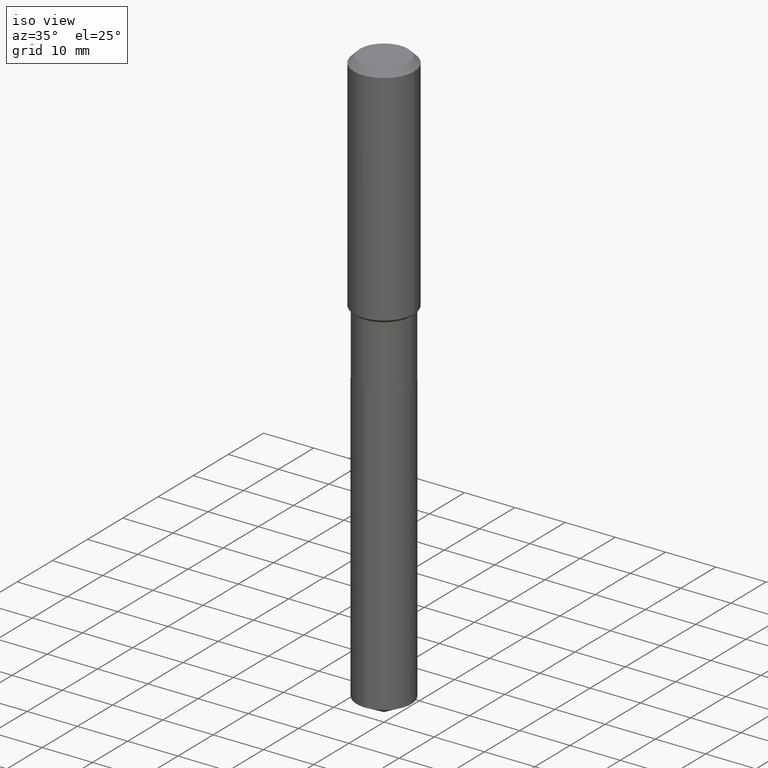
[diagram: clean part render]
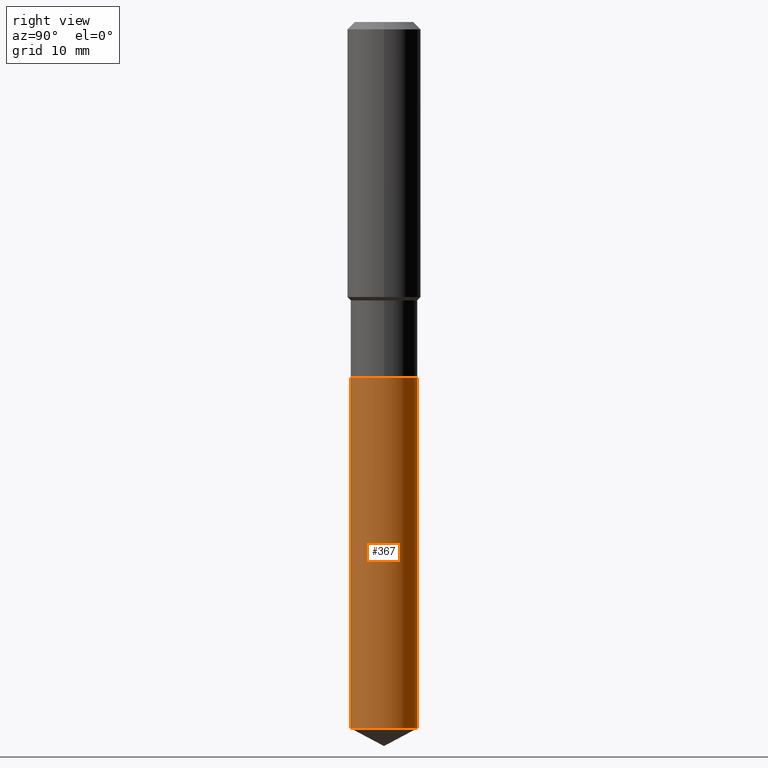
[diagram: tour spotlight — one face highlighted and labeled with its STEP entity id]
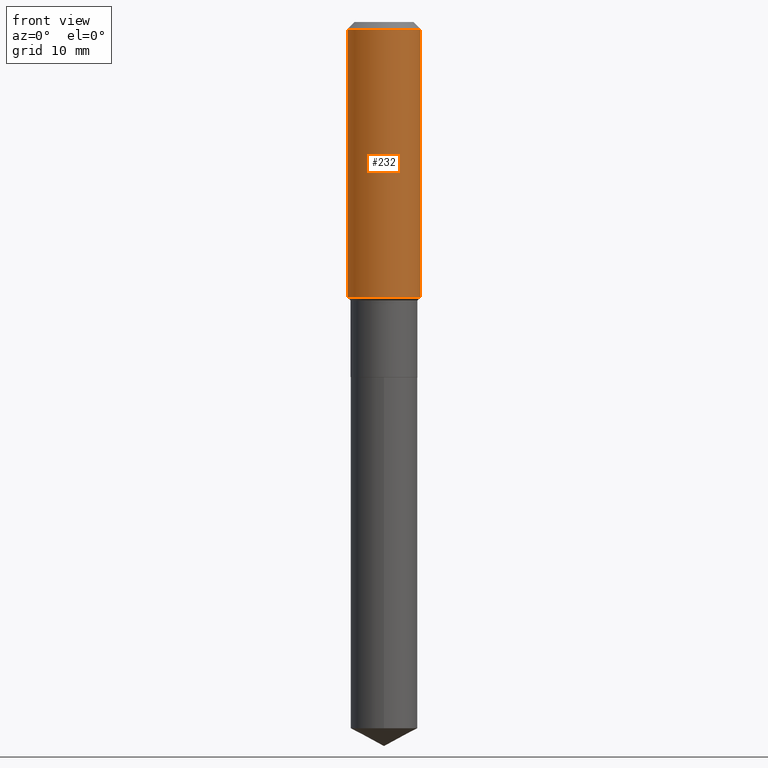
[diagram: tour spotlight — one face highlighted and labeled with its STEP entity id]
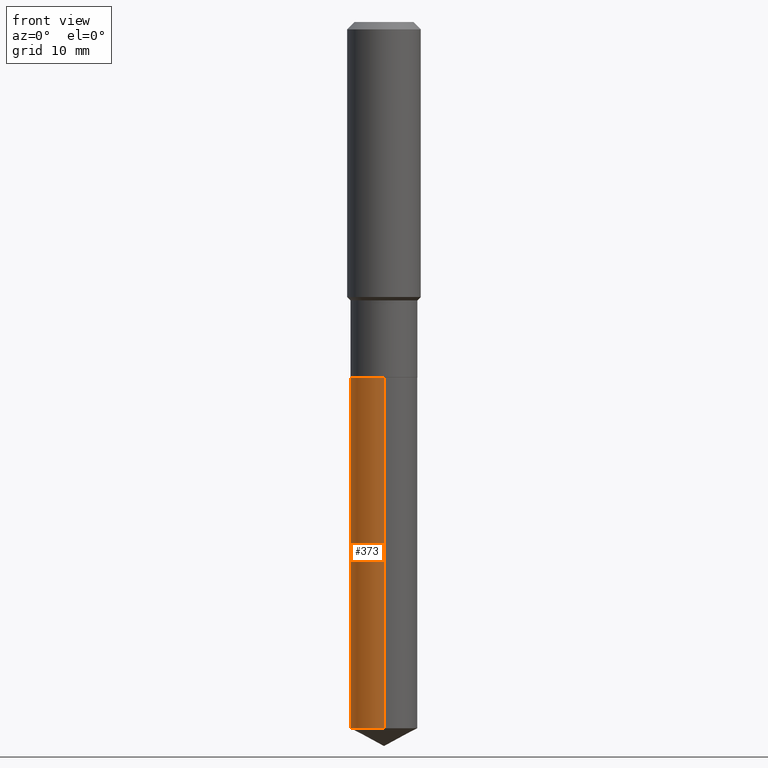
[diagram: tour spotlight — one face highlighted and labeled with its STEP entity id]
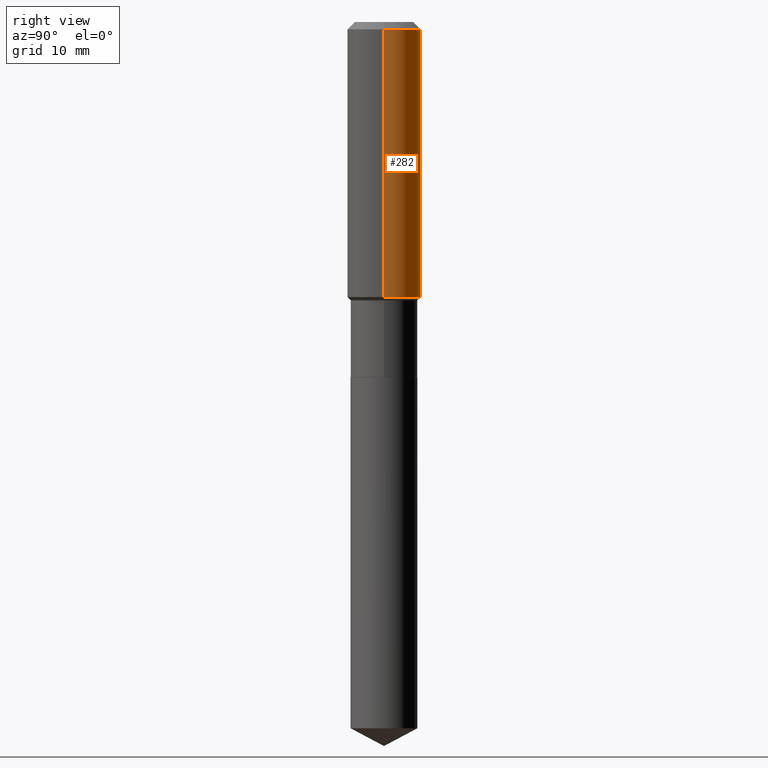
[diagram: tour spotlight — one face highlighted and labeled with its STEP entity id]
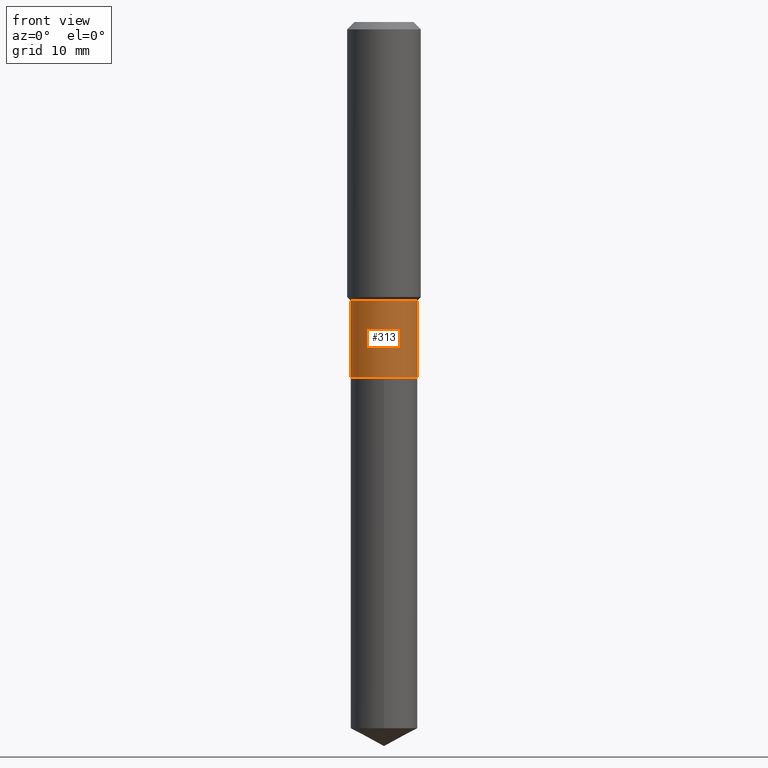
[diagram: tour spotlight — one face highlighted and labeled with its STEP entity id]
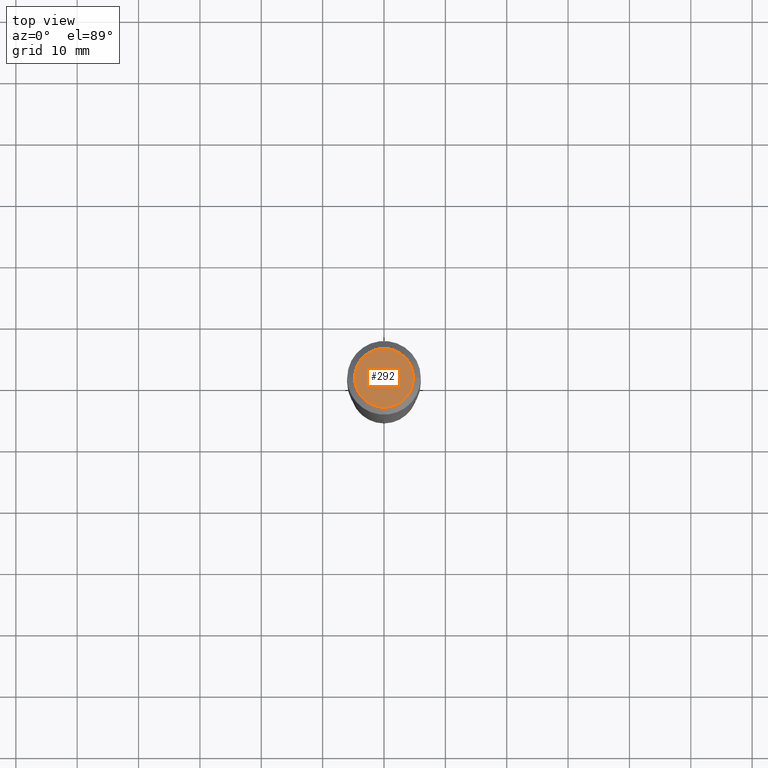
[diagram: tour spotlight — one face highlighted and labeled with its STEP entity id]
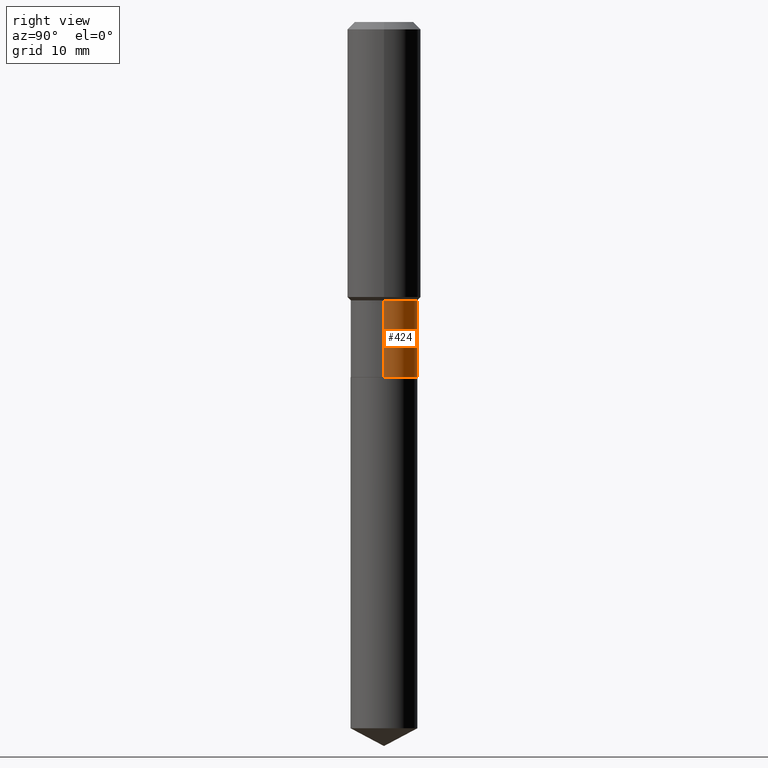
[diagram: tour spotlight — one face highlighted and labeled with its STEP entity id]
A machine part: a face-by-face anatomy tour. The part has 17 B-rep faces; the first image is the clean iso view, then the 7 largest visible faces are spotlighted one at a time (largest first), each with its STEP entity span.

Face 1 — right view, entity #367. In plain terms, the highlighted cylindrical surface (edge-blend (fillet) strip) has radius 5.4496 mm, axis along (-0, 0, 1).
Definition (entity closure, byte-faithful):
#10 = VERTEX_POINT ( 'NONE', #303 ) ;
#21 = AXIS2_PLACEMENT_3D ( 'NONE', #239, #396, #51 ) ;
#51 = DIRECTION ( 'NONE',  ( -6.982962677686266711E-15, -1.000000000000000000, 3.819876010716751118E-15 ) ) ;
#60 = VECTOR ( 'NONE', #197, 39.37007874015748143 ) ;
#72 = CARTESIAN_POINT ( 'NONE',  ( -1.498194642497477368E-15, -0.2145500000000157836, -4.531621741437029449 ) ) ;
#75 = VERTEX_POINT ( 'NONE', #187 ) ;
#82 = LINE ( 'NONE', #200, #330 ) ;
#83 = VERTEX_POINT ( 'NONE', #72 ) ;
#110 = VERTEX_POINT ( 'NONE', #357 ) ;
#115 = AXIS2_PLACEMENT_3D ( 'NONE', #316, #469, #121 ) ;
#121 = DIRECTION ( 'NONE',  ( -6.982962677686266711E-15, -1.000000000000000000, 2.546584007144500745E-15 ) ) ;
#127 = EDGE_CURVE ( 'NONE', #10, #75, #254, .T. ) ;
#159 = CARTESIAN_POINT ( 'NONE',  ( -1.498194642497532588E-15, -0.2145500000000079566, -2.279499999999998749 ) ) ;
#165 = DIRECTION ( 'NONE',  ( -2.445464104215688479E-29, 3.491488072331014766E-15, 1.000000000000000000 ) ) ;
#167 = AXIS2_PLACEMENT_3D ( 'NONE', #476, #165, #444 ) ;
#187 = CARTESIAN_POINT ( 'NONE',  ( 1.524469439573405915E-15, 0.2145499999999920249, -2.279500000000000526 ) ) ;
#197 = DIRECTION ( 'NONE',  ( -2.445464104215688759E-29, 3.491488072331014766E-15, 1.000000000000000000 ) ) ;
#199 = EDGE_LOOP ( 'NONE', ( #265, #432, #356, #219 ) ) ;
#200 = CARTESIAN_POINT ( 'NONE',  ( 1.524469439573350498E-15, 0.2145499999999920526, -2.279500000000000526 ) ) ;
#203 = DIRECTION ( 'NONE',  ( -2.445464104215688759E-29, 3.491488072331014766E-15, 1.000000000000000000 ) ) ;
#216 = CIRCLE ( 'NONE', #115, 0.2145499999999999907 ) ;
#219 = ORIENTED_EDGE ( 'NONE', *, *, #399, .F. ) ;
#221 = EDGE_CURVE ( 'NONE', #110, #75, #82, .T. ) ;
#239 = CARTESIAN_POINT ( 'NONE',  ( 5.574446143699018056E-29, -7.958831711892947948E-15, -2.279499999999999638 ) ) ;
#254 = CIRCLE ( 'NONE', #21, 0.2145499999999999907 ) ;
#265 = ORIENTED_EDGE ( 'NONE', *, *, #451, .T. ) ;
#284 = LINE ( 'NONE', #159, #60 ) ;
#287 = FACE_OUTER_BOUND ( 'NONE', #199, .T. ) ;
#303 = CARTESIAN_POINT ( 'NONE',  ( -1.498194642497532588E-15, -0.2145500000000079566, -2.279499999999998749 ) ) ;
#316 = CARTESIAN_POINT ( 'NONE',  ( 1.108192902070700221E-28, -1.582208790955769543E-14, -4.531621741437030337 ) ) ;
#330 = VECTOR ( 'NONE', #203, 39.37007874015748143 ) ;
#356 = ORIENTED_EDGE ( 'NONE', *, *, #127, .F. ) ;
#357 = CARTESIAN_POINT ( 'NONE',  ( 1.524469439573405126E-15, 0.2145499999999841700, -4.531621741437031226 ) ) ;
#367 = ADVANCED_FACE ( 'NONE', ( #287 ), #473, .T. ) ;
#396 = DIRECTION ( 'NONE',  ( -2.445464104215688479E-29, 3.491488072331014766E-15, 1.000000000000000000 ) ) ;
#399 = EDGE_CURVE ( 'NONE', #83, #10, #284, .T. ) ;
#432 = ORIENTED_EDGE ( 'NONE', *, *, #221, .T. ) ;
#444 = DIRECTION ( 'NONE',  ( -6.982962677686266711E-15, -1.000000000000000000, 3.819876010716751118E-15 ) ) ;
#451 = EDGE_CURVE ( 'NONE', #83, #110, #216, .T. ) ;
#469 = DIRECTION ( 'NONE',  ( -2.445464104215688479E-29, 3.491488072331014766E-15, 1.000000000000000000 ) ) ;
#473 = CYLINDRICAL_SURFACE ( 'NONE', #167, 0.2145499999999999907 ) ;
#476 = CARTESIAN_POINT ( 'NONE',  ( 5.574446143699018056E-29, -7.958831711892947948E-15, -2.279499999999999638 ) ) ;

Face 2 — front view, entity #232. In plain terms, the highlighted cylindrical surface (partial cylindrical patch) has radius 5.9995 mm, axis along (-0, 0, 1).
Definition (entity closure, byte-faithful):
#3 = AXIS2_PLACEMENT_3D ( 'NONE', #178, #414, #329 ) ;
#16 = CYLINDRICAL_SURFACE ( 'NONE', #308, 0.2362000000000001043 ) ;
#47 = DIRECTION ( 'NONE',  ( -2.445468806185136877E-29, 3.491481338843145188E-15, 1.000000000000000000 ) ) ;
#48 = ORIENTED_EDGE ( 'NONE', *, *, #489, .F. ) ;
#52 = DIRECTION ( 'NONE',  ( -2.445468806185136877E-29, 3.491481338843145188E-15, 1.000000000000000000 ) ) ;
#55 = EDGE_CURVE ( 'NONE', #419, #80, #379, .T. ) ;
#59 = LINE ( 'NONE', #275, #353 ) ;
#80 = VERTEX_POINT ( 'NONE', #299 ) ;
#89 = LINE ( 'NONE', #170, #457 ) ;
#118 = FACE_OUTER_BOUND ( 'NONE', #163, .T. ) ;
#120 = CARTESIAN_POINT ( 'NONE',  ( -0.2361999999999999933, -1.484264397452068200E-15, -0.04724000000000028177 ) ) ;
#143 = CARTESIAN_POINT ( 'NONE',  ( 4.314662888192743703E-29, -6.160195100187900640E-15, -1.764349999999999197 ) ) ;
#148 = DIRECTION ( 'NONE',  ( -2.445468806185136597E-29, 3.491481338843145583E-15, 1.000000000000000000 ) ) ;
#163 = EDGE_LOOP ( 'NONE', ( #305, #191, #192, #48 ) ) ;
#164 = DIRECTION ( 'NONE',  ( 1.000000000000000000, -6.982962677686266711E-15, 4.876176775795935793E-29 ) ) ;
#170 = CARTESIAN_POINT ( 'NONE',  ( 0.2362000000000001043, -1.649375784469496920E-15, 1.151752954443000508E-29 ) ) ;
#178 = CARTESIAN_POINT ( 'NONE',  ( 1.155239464041865506E-30, -1.649375784469511859E-16, -0.04724000000000028177 ) ) ;
#191 = ORIENTED_EDGE ( 'NONE', *, *, #55, .T. ) ;
#192 = ORIENTED_EDGE ( 'NONE', *, *, #392, .T. ) ;
#208 = AXIS2_PLACEMENT_3D ( 'NONE', #143, #148, #382 ) ;
#230 = VERTEX_POINT ( 'NONE', #120 ) ;
#232 = ADVANCED_FACE ( 'NONE', ( #118 ), #16, .T. ) ;
#245 = CARTESIAN_POINT ( 'NONE',  ( 0.000000000000000000, 0.000000000000000000, 0.000000000000000000 ) ) ;
#275 = CARTESIAN_POINT ( 'NONE',  ( -0.2362000000000001043, 1.678301941865357380E-15, -1.161852468318209317E-29 ) ) ;
#299 = CARTESIAN_POINT ( 'NONE',  ( 0.2362000000000002153, -7.809570884657398743E-15, -1.764349999999999197 ) ) ;
#305 = ORIENTED_EDGE ( 'NONE', *, *, #471, .F. ) ;
#308 = AXIS2_PLACEMENT_3D ( 'NONE', #245, #389, #164 ) ;
#329 = DIRECTION ( 'NONE',  ( 1.000000000000000000, -6.982962677686266711E-15, 0.000000000000000000 ) ) ;
#353 = VECTOR ( 'NONE', #52, 39.37007874015748143 ) ;
#364 = CARTESIAN_POINT ( 'NONE',  ( 0.2361999999999999933, -1.814313362916447440E-15, -0.04724000000000028177 ) ) ;
#366 = CARTESIAN_POINT ( 'NONE',  ( -0.2362000000000002153, -4.481893158322543457E-15, -1.764349999999999197 ) ) ;
#379 = CIRCLE ( 'NONE', #208, 0.2362000000000002153 ) ;
#382 = DIRECTION ( 'NONE',  ( 1.000000000000000000, -6.982962677686266711E-15, 0.000000000000000000 ) ) ;
#389 = DIRECTION ( 'NONE',  ( -2.445468806185136597E-29, 3.491481338843145583E-15, 1.000000000000000000 ) ) ;
#390 = VERTEX_POINT ( 'NONE', #364 ) ;
#392 = EDGE_CURVE ( 'NONE', #80, #390, #89, .T. ) ;
#414 = DIRECTION ( 'NONE',  ( -2.445468806185136597E-29, 3.491481338843145583E-15, 1.000000000000000000 ) ) ;
#419 = VERTEX_POINT ( 'NONE', #366 ) ;
#425 = CIRCLE ( 'NONE', #3, 0.2361999999999999933 ) ;
#457 = VECTOR ( 'NONE', #47, 39.37007874015748143 ) ;
#471 = EDGE_CURVE ( 'NONE', #419, #230, #59, .T. ) ;
#489 = EDGE_CURVE ( 'NONE', #230, #390, #425, .T. ) ;

Face 3 — front view, entity #373. In plain terms, the highlighted cylindrical surface (edge-blend (fillet) strip) has radius 5.4496 mm, axis along (-0, 0, 1).
Definition (entity closure, byte-faithful):
#10 = VERTEX_POINT ( 'NONE', #303 ) ;
#12 = DIRECTION ( 'NONE',  ( -2.445464104215688479E-29, 3.491488072331014766E-15, 1.000000000000000000 ) ) ;
#17 = CYLINDRICAL_SURFACE ( 'NONE', #269, 0.2145499999999999907 ) ;
#32 = EDGE_LOOP ( 'NONE', ( #417, #87, #351, #114 ) ) ;
#34 = AXIS2_PLACEMENT_3D ( 'NONE', #46, #12, #123 ) ;
#46 = CARTESIAN_POINT ( 'NONE',  ( 5.574446143699018056E-29, -7.958831711892947948E-15, -2.279499999999999638 ) ) ;
#49 = AXIS2_PLACEMENT_3D ( 'NONE', #205, #283, #321 ) ;
#60 = VECTOR ( 'NONE', #197, 39.37007874015748143 ) ;
#72 = CARTESIAN_POINT ( 'NONE',  ( -1.498194642497477368E-15, -0.2145500000000157836, -4.531621741437029449 ) ) ;
#75 = VERTEX_POINT ( 'NONE', #187 ) ;
#82 = LINE ( 'NONE', #200, #330 ) ;
#83 = VERTEX_POINT ( 'NONE', #72 ) ;
#87 = ORIENTED_EDGE ( 'NONE', *, *, #238, .T. ) ;
#95 = FACE_OUTER_BOUND ( 'NONE', #32, .T. ) ;
#110 = VERTEX_POINT ( 'NONE', #357 ) ;
#114 = ORIENTED_EDGE ( 'NONE', *, *, #155, .F. ) ;
#123 = DIRECTION ( 'NONE',  ( -6.982962677686266711E-15, -1.000000000000000000, 3.819876010716751118E-15 ) ) ;
#124 = DIRECTION ( 'NONE',  ( -2.445464104215688479E-29, 3.491488072331014766E-15, 1.000000000000000000 ) ) ;
#129 = DIRECTION ( 'NONE',  ( -6.982962677686266711E-15, -1.000000000000000000, 3.819876010716751118E-15 ) ) ;
#155 = EDGE_CURVE ( 'NONE', #75, #10, #209, .T. ) ;
#159 = CARTESIAN_POINT ( 'NONE',  ( -1.498194642497532588E-15, -0.2145500000000079566, -2.279499999999998749 ) ) ;
#187 = CARTESIAN_POINT ( 'NONE',  ( 1.524469439573405915E-15, 0.2145499999999920249, -2.279500000000000526 ) ) ;
#197 = DIRECTION ( 'NONE',  ( -2.445464104215688759E-29, 3.491488072331014766E-15, 1.000000000000000000 ) ) ;
#200 = CARTESIAN_POINT ( 'NONE',  ( 1.524469439573350498E-15, 0.2145499999999920526, -2.279500000000000526 ) ) ;
#203 = DIRECTION ( 'NONE',  ( -2.445464104215688759E-29, 3.491488072331014766E-15, 1.000000000000000000 ) ) ;
#205 = CARTESIAN_POINT ( 'NONE',  ( 1.108192902070700221E-28, -1.582208790955769543E-14, -4.531621741437030337 ) ) ;
#206 = CARTESIAN_POINT ( 'NONE',  ( 5.574446143699018056E-29, -7.958831711892947948E-15, -2.279499999999999638 ) ) ;
#209 = CIRCLE ( 'NONE', #34, 0.2145499999999999907 ) ;
#221 = EDGE_CURVE ( 'NONE', #110, #75, #82, .T. ) ;
#238 = EDGE_CURVE ( 'NONE', #110, #83, #443, .T. ) ;
#269 = AXIS2_PLACEMENT_3D ( 'NONE', #206, #124, #129 ) ;
#283 = DIRECTION ( 'NONE',  ( -2.445464104215688479E-29, 3.491488072331014766E-15, 1.000000000000000000 ) ) ;
#284 = LINE ( 'NONE', #159, #60 ) ;
#303 = CARTESIAN_POINT ( 'NONE',  ( -1.498194642497532588E-15, -0.2145500000000079566, -2.279499999999998749 ) ) ;
#321 = DIRECTION ( 'NONE',  ( -6.982962677686266711E-15, -1.000000000000000000, 2.546584007144500745E-15 ) ) ;
#330 = VECTOR ( 'NONE', #203, 39.37007874015748143 ) ;
#351 = ORIENTED_EDGE ( 'NONE', *, *, #399, .T. ) ;
#357 = CARTESIAN_POINT ( 'NONE',  ( 1.524469439573405126E-15, 0.2145499999999841700, -4.531621741437031226 ) ) ;
#373 = ADVANCED_FACE ( 'NONE', ( #95 ), #17, .T. ) ;
#399 = EDGE_CURVE ( 'NONE', #83, #10, #284, .T. ) ;
#417 = ORIENTED_EDGE ( 'NONE', *, *, #221, .F. ) ;
#443 = CIRCLE ( 'NONE', #49, 0.2145499999999999907 ) ;

Face 4 — right view, entity #282. In plain terms, the highlighted cylindrical surface (partial cylindrical patch) has radius 5.9995 mm, axis along (-0, 0, 1).
Definition (entity closure, byte-faithful):
#37 = CARTESIAN_POINT ( 'NONE',  ( 4.314662888192743703E-29, -6.160195100187900640E-15, -1.764349999999999197 ) ) ;
#47 = DIRECTION ( 'NONE',  ( -2.445468806185136877E-29, 3.491481338843145188E-15, 1.000000000000000000 ) ) ;
#52 = DIRECTION ( 'NONE',  ( -2.445468806185136877E-29, 3.491481338843145188E-15, 1.000000000000000000 ) ) ;
#59 = LINE ( 'NONE', #275, #353 ) ;
#66 = AXIS2_PLACEMENT_3D ( 'NONE', #272, #152, #157 ) ;
#71 = EDGE_CURVE ( 'NONE', #80, #419, #334, .T. ) ;
#74 = ORIENTED_EDGE ( 'NONE', *, *, #71, .T. ) ;
#80 = VERTEX_POINT ( 'NONE', #299 ) ;
#89 = LINE ( 'NONE', #170, #457 ) ;
#120 = CARTESIAN_POINT ( 'NONE',  ( -0.2361999999999999933, -1.484264397452068200E-15, -0.04724000000000028177 ) ) ;
#152 = DIRECTION ( 'NONE',  ( -2.445468806185136597E-29, 3.491481338843145583E-15, 1.000000000000000000 ) ) ;
#157 = DIRECTION ( 'NONE',  ( 1.000000000000000000, -6.982962677686266711E-15, 4.876176775795935793E-29 ) ) ;
#160 = ORIENTED_EDGE ( 'NONE', *, *, #471, .T. ) ;
#170 = CARTESIAN_POINT ( 'NONE',  ( 0.2362000000000001043, -1.649375784469496920E-15, 1.151752954443000508E-29 ) ) ;
#184 = EDGE_LOOP ( 'NONE', ( #74, #160, #452, #312 ) ) ;
#193 = FACE_OUTER_BOUND ( 'NONE', #184, .T. ) ;
#229 = CIRCLE ( 'NONE', #372, 0.2361999999999999933 ) ;
#230 = VERTEX_POINT ( 'NONE', #120 ) ;
#236 = DIRECTION ( 'NONE',  ( 1.000000000000000000, -6.982962677686266711E-15, 0.000000000000000000 ) ) ;
#272 = CARTESIAN_POINT ( 'NONE',  ( 0.000000000000000000, 0.000000000000000000, 0.000000000000000000 ) ) ;
#275 = CARTESIAN_POINT ( 'NONE',  ( -0.2362000000000001043, 1.678301941865357380E-15, -1.161852468318209317E-29 ) ) ;
#282 = ADVANCED_FACE ( 'NONE', ( #193 ), #349, .T. ) ;
#299 = CARTESIAN_POINT ( 'NONE',  ( 0.2362000000000002153, -7.809570884657398743E-15, -1.764349999999999197 ) ) ;
#312 = ORIENTED_EDGE ( 'NONE', *, *, #392, .F. ) ;
#319 = DIRECTION ( 'NONE',  ( -2.445468806185136597E-29, 3.491481338843145583E-15, 1.000000000000000000 ) ) ;
#334 = CIRCLE ( 'NONE', #352, 0.2362000000000002153 ) ;
#341 = DIRECTION ( 'NONE',  ( 1.000000000000000000, -6.982962677686266711E-15, 0.000000000000000000 ) ) ;
#347 = DIRECTION ( 'NONE',  ( -2.445468806185136597E-29, 3.491481338843145583E-15, 1.000000000000000000 ) ) ;
#349 = CYLINDRICAL_SURFACE ( 'NONE', #66, 0.2362000000000001043 ) ;
#352 = AXIS2_PLACEMENT_3D ( 'NONE', #37, #347, #341 ) ;
#353 = VECTOR ( 'NONE', #52, 39.37007874015748143 ) ;
#364 = CARTESIAN_POINT ( 'NONE',  ( 0.2361999999999999933, -1.814313362916447440E-15, -0.04724000000000028177 ) ) ;
#366 = CARTESIAN_POINT ( 'NONE',  ( -0.2362000000000002153, -4.481893158322543457E-15, -1.764349999999999197 ) ) ;
#372 = AXIS2_PLACEMENT_3D ( 'NONE', #435, #319, #236 ) ;
#376 = EDGE_CURVE ( 'NONE', #390, #230, #229, .T. ) ;
#390 = VERTEX_POINT ( 'NONE', #364 ) ;
#392 = EDGE_CURVE ( 'NONE', #80, #390, #89, .T. ) ;
#419 = VERTEX_POINT ( 'NONE', #366 ) ;
#435 = CARTESIAN_POINT ( 'NONE',  ( 1.155239464041865506E-30, -1.649375784469511859E-16, -0.04724000000000028177 ) ) ;
#452 = ORIENTED_EDGE ( 'NONE', *, *, #376, .F. ) ;
#457 = VECTOR ( 'NONE', #47, 39.37007874015748143 ) ;
#471 = EDGE_CURVE ( 'NONE', #419, #230, #59, .T. ) ;

Face 5 — front view, entity #313. In plain terms, the highlighted cylindrical surface (edge-blend (fillet) strip) has radius 5.4496 mm, axis along (-0, 0, 1).
Definition (entity closure, byte-faithful):
#23 = EDGE_CURVE ( 'NONE', #43, #90, #182, .T. ) ;
#24 = CARTESIAN_POINT ( 'NONE',  ( 0.2145499999999999907, -9.455280613721116027E-15, -2.278999999999999471 ) ) ;
#30 = CARTESIAN_POINT ( 'NONE',  ( 0.2145499999999999352, -7.733980313671444089E-15, -1.785999999999999366 ) ) ;
#43 = VERTEX_POINT ( 'NONE', #225 ) ;
#62 = CARTESIAN_POINT ( 'NONE',  ( 0.000000000000000000, 0.000000000000000000, 0.000000000000000000 ) ) ;
#65 = AXIS2_PLACEMENT_3D ( 'NONE', #150, #306, #223 ) ;
#69 = FACE_OUTER_BOUND ( 'NONE', #237, .T. ) ;
#73 = AXIS2_PLACEMENT_3D ( 'NONE', #62, #374, #408 ) ;
#85 = EDGE_CURVE ( 'NONE', #90, #490, #145, .T. ) ;
#90 = VERTEX_POINT ( 'NONE', #381 ) ;
#97 = CYLINDRICAL_SURFACE ( 'NONE', #73, 0.2145499999999999630 ) ;
#134 = VECTOR ( 'NONE', #487, 39.37007874015748143 ) ;
#144 = CARTESIAN_POINT ( 'NONE',  ( -0.2145499999999999630, 1.524469439573294686E-15, -1.055357523614189967E-29 ) ) ;
#145 = CIRCLE ( 'NONE', #65, 0.2145499999999999352 ) ;
#149 = VERTEX_POINT ( 'NONE', #24 ) ;
#150 = CARTESIAN_POINT ( 'NONE',  ( 4.367607287846652814E-29, -6.235785671173856083E-15, -1.785999999999999366 ) ) ;
#171 = DIRECTION ( 'NONE',  ( 1.000000000000000000, -6.982962677686269077E-15, 0.000000000000000000 ) ) ;
#182 = LINE ( 'NONE', #144, #134 ) ;
#194 = ORIENTED_EDGE ( 'NONE', *, *, #23, .F. ) ;
#210 = EDGE_CURVE ( 'NONE', #149, #490, #434, .T. ) ;
#223 = DIRECTION ( 'NONE',  ( 1.000000000000000000, -6.982962677686266711E-15, 0.000000000000000000 ) ) ;
#225 = CARTESIAN_POINT ( 'NONE',  ( -0.2145499999999999907, -5.571966381625396973E-15, -2.278999999999999471 ) ) ;
#231 = ORIENTED_EDGE ( 'NONE', *, *, #210, .T. ) ;
#237 = EDGE_LOOP ( 'NONE', ( #194, #263, #231, #336 ) ) ;
#263 = ORIENTED_EDGE ( 'NONE', *, *, #342, .T. ) ;
#288 = AXIS2_PLACEMENT_3D ( 'NONE', #327, #393, #171 ) ;
#306 = DIRECTION ( 'NONE',  ( -2.445468806185136597E-29, 3.491481338843145583E-15, 1.000000000000000000 ) ) ;
#313 = ADVANCED_FACE ( 'NONE', ( #69 ), #97, .T. ) ;
#327 = CARTESIAN_POINT ( 'NONE',  ( 5.573223409295925255E-29, -7.957085971223527233E-15, -2.278999999999999471 ) ) ;
#336 = ORIENTED_EDGE ( 'NONE', *, *, #85, .F. ) ;
#342 = EDGE_CURVE ( 'NONE', #43, #149, #380, .T. ) ;
#374 = DIRECTION ( 'NONE',  ( -2.445468806185136597E-29, 3.491481338843145583E-15, 1.000000000000000000 ) ) ;
#380 = CIRCLE ( 'NONE', #288, 0.2145499999999999907 ) ;
#381 = CARTESIAN_POINT ( 'NONE',  ( -0.2145499999999999352, -5.571966381625397761E-15, -1.785999999999999366 ) ) ;
#393 = DIRECTION ( 'NONE',  ( -2.445468806185136597E-29, 3.491481338843145583E-15, 1.000000000000000000 ) ) ;
#400 = CARTESIAN_POINT ( 'NONE',  ( 0.2145499999999999630, -1.498194642497588202E-15, 1.046183727247017934E-29 ) ) ;
#408 = DIRECTION ( 'NONE',  ( 1.000000000000000000, -6.982962677686266711E-15, 4.876176775795936353E-29 ) ) ;
#434 = LINE ( 'NONE', #400, #486 ) ;
#468 = DIRECTION ( 'NONE',  ( -2.445468806185136877E-29, 3.491481338843145188E-15, 1.000000000000000000 ) ) ;
#486 = VECTOR ( 'NONE', #468, 39.37007874015748143 ) ;
#487 = DIRECTION ( 'NONE',  ( -2.445468806185136877E-29, 3.491481338843145188E-15, 1.000000000000000000 ) ) ;
#490 = VERTEX_POINT ( 'NONE', #30 ) ;

Face 6 — top view, entity #292. In plain terms, the highlighted planar face has unit normal (0, -0, -1).
Definition (entity closure, byte-faithful):
#1 = CARTESIAN_POINT ( 'NONE',  ( -9.427742298522546243E-47, 1.346031739168365344E-32, 3.855188123715862256E-18 ) ) ;
#42 = DIRECTION ( 'NONE',  ( 1.000000000000000000, -6.982962677686266711E-15, 4.876185090822587894E-29 ) ) ;
#56 = DIRECTION ( 'NONE',  ( 1.000000000000000000, -6.982962677686266711E-15, 4.876185090822587894E-29 ) ) ;
#79 = CIRCLE ( 'NONE', #418, 0.1889600000000000168 ) ;
#84 = EDGE_CURVE ( 'NONE', #218, #436, #481, .T. ) ;
#103 = DIRECTION ( 'NONE',  ( 2.438088387897960049E-29, -3.491481338843145188E-15, -1.000000000000000000 ) ) ;
#132 = DIRECTION ( 'NONE',  ( -1.000000000000000000, 6.982962677686265922E-15, -4.876176775795935793E-29 ) ) ;
#173 = CARTESIAN_POINT ( 'NONE',  ( -4.713871149261273121E-47, 6.730158695841826722E-33, 1.927594061857931128E-18 ) ) ;
#176 = PLANE ( 'NONE',  #188 ) ;
#188 = AXIS2_PLACEMENT_3D ( 'NONE', #173, #103, #132 ) ;
#189 = EDGE_LOOP ( 'NONE', ( #415, #426 ) ) ;
#201 = CARTESIAN_POINT ( 'NONE',  ( -9.427742298522546243E-47, 1.346031739168365344E-32, 3.855188123715862256E-18 ) ) ;
#218 = VERTEX_POINT ( 'NONE', #285 ) ;
#246 = CARTESIAN_POINT ( 'NONE',  ( 0.1889600000000000168, -1.540873453589747738E-15, 3.855188123725863225E-18 ) ) ;
#285 = CARTESIAN_POINT ( 'NONE',  ( -0.1889600000000000168, 1.401969416799070942E-15, 3.855188123706346622E-18 ) ) ;
#292 = ADVANCED_FACE ( 'NONE', ( #354 ), #176, .F. ) ;
#354 = FACE_OUTER_BOUND ( 'NONE', #189, .T. ) ;
#371 = AXIS2_PLACEMENT_3D ( 'NONE', #1, #387, #42 ) ;
#387 = DIRECTION ( 'NONE',  ( -2.445468806185136597E-29, 3.491481338843145583E-15, 1.000000000000000000 ) ) ;
#401 = DIRECTION ( 'NONE',  ( -2.445468806185136597E-29, 3.491481338843145583E-15, 1.000000000000000000 ) ) ;
#415 = ORIENTED_EDGE ( 'NONE', *, *, #84, .T. ) ;
#418 = AXIS2_PLACEMENT_3D ( 'NONE', #201, #401, #56 ) ;
#426 = ORIENTED_EDGE ( 'NONE', *, *, #480, .T. ) ;
#436 = VERTEX_POINT ( 'NONE', #246 ) ;
#480 = EDGE_CURVE ( 'NONE', #436, #218, #79, .T. ) ;
#481 = CIRCLE ( 'NONE', #371, 0.1889600000000000168 ) ;

Face 7 — right view, entity #424. In plain terms, the highlighted cylindrical surface (edge-blend (fillet) strip) has radius 5.4496 mm, axis along (-0, 0, 1).
Definition (entity closure, byte-faithful):
#23 = EDGE_CURVE ( 'NONE', #43, #90, #182, .T. ) ;
#24 = CARTESIAN_POINT ( 'NONE',  ( 0.2145499999999999907, -9.455280613721116027E-15, -2.278999999999999471 ) ) ;
#30 = CARTESIAN_POINT ( 'NONE',  ( 0.2145499999999999352, -7.733980313671444089E-15, -1.785999999999999366 ) ) ;
#43 = VERTEX_POINT ( 'NONE', #225 ) ;
#86 = DIRECTION ( 'NONE',  ( 1.000000000000000000, -6.982962677686269077E-15, 0.000000000000000000 ) ) ;
#90 = VERTEX_POINT ( 'NONE', #381 ) ;
#109 = ORIENTED_EDGE ( 'NONE', *, *, #290, .T. ) ;
#130 = DIRECTION ( 'NONE',  ( -2.445468806185136597E-29, 3.491481338843145583E-15, 1.000000000000000000 ) ) ;
#131 = CYLINDRICAL_SURFACE ( 'NONE', #433, 0.2145499999999999630 ) ;
#134 = VECTOR ( 'NONE', #487, 39.37007874015748143 ) ;
#139 = AXIS2_PLACEMENT_3D ( 'NONE', #318, #130, #472 ) ;
#142 = EDGE_CURVE ( 'NONE', #490, #90, #448, .T. ) ;
#144 = CARTESIAN_POINT ( 'NONE',  ( -0.2145499999999999630, 1.524469439573294686E-15, -1.055357523614189967E-29 ) ) ;
#149 = VERTEX_POINT ( 'NONE', #24 ) ;
#175 = CIRCLE ( 'NONE', #343, 0.2145499999999999907 ) ;
#182 = LINE ( 'NONE', #144, #134 ) ;
#210 = EDGE_CURVE ( 'NONE', #149, #490, #434, .T. ) ;
#225 = CARTESIAN_POINT ( 'NONE',  ( -0.2145499999999999907, -5.571966381625396973E-15, -2.278999999999999471 ) ) ;
#248 = CARTESIAN_POINT ( 'NONE',  ( 0.000000000000000000, 0.000000000000000000, 0.000000000000000000 ) ) ;
#270 = ORIENTED_EDGE ( 'NONE', *, *, #210, .F. ) ;
#276 = EDGE_LOOP ( 'NONE', ( #109, #335, #461, #270 ) ) ;
#286 = DIRECTION ( 'NONE',  ( -2.445468806185136597E-29, 3.491481338843145583E-15, 1.000000000000000000 ) ) ;
#290 = EDGE_CURVE ( 'NONE', #149, #43, #175, .T. ) ;
#309 = DIRECTION ( 'NONE',  ( -2.445468806185136597E-29, 3.491481338843145583E-15, 1.000000000000000000 ) ) ;
#315 = CARTESIAN_POINT ( 'NONE',  ( 5.573223409295925255E-29, -7.957085971223527233E-15, -2.278999999999999471 ) ) ;
#318 = CARTESIAN_POINT ( 'NONE',  ( 4.367607287846652814E-29, -6.235785671173856083E-15, -1.785999999999999366 ) ) ;
#335 = ORIENTED_EDGE ( 'NONE', *, *, #23, .T. ) ;
#343 = AXIS2_PLACEMENT_3D ( 'NONE', #315, #309, #86 ) ;
#355 = DIRECTION ( 'NONE',  ( 1.000000000000000000, -6.982962677686266711E-15, 4.876176775795936353E-29 ) ) ;
#381 = CARTESIAN_POINT ( 'NONE',  ( -0.2145499999999999352, -5.571966381625397761E-15, -1.785999999999999366 ) ) ;
#400 = CARTESIAN_POINT ( 'NONE',  ( 0.2145499999999999630, -1.498194642497588202E-15, 1.046183727247017934E-29 ) ) ;
#424 = ADVANCED_FACE ( 'NONE', ( #440 ), #131, .T. ) ;
#433 = AXIS2_PLACEMENT_3D ( 'NONE', #248, #286, #355 ) ;
#434 = LINE ( 'NONE', #400, #486 ) ;
#440 = FACE_OUTER_BOUND ( 'NONE', #276, .T. ) ;
#448 = CIRCLE ( 'NONE', #139, 0.2145499999999999352 ) ;
#461 = ORIENTED_EDGE ( 'NONE', *, *, #142, .F. ) ;
#468 = DIRECTION ( 'NONE',  ( -2.445468806185136877E-29, 3.491481338843145188E-15, 1.000000000000000000 ) ) ;
#472 = DIRECTION ( 'NONE',  ( 1.000000000000000000, -6.982962677686266711E-15, 0.000000000000000000 ) ) ;
#486 = VECTOR ( 'NONE', #468, 39.37007874015748143 ) ;
#487 = DIRECTION ( 'NONE',  ( -2.445468806185136877E-29, 3.491481338843145188E-15, 1.000000000000000000 ) ) ;
#490 = VERTEX_POINT ( 'NONE', #30 ) ;